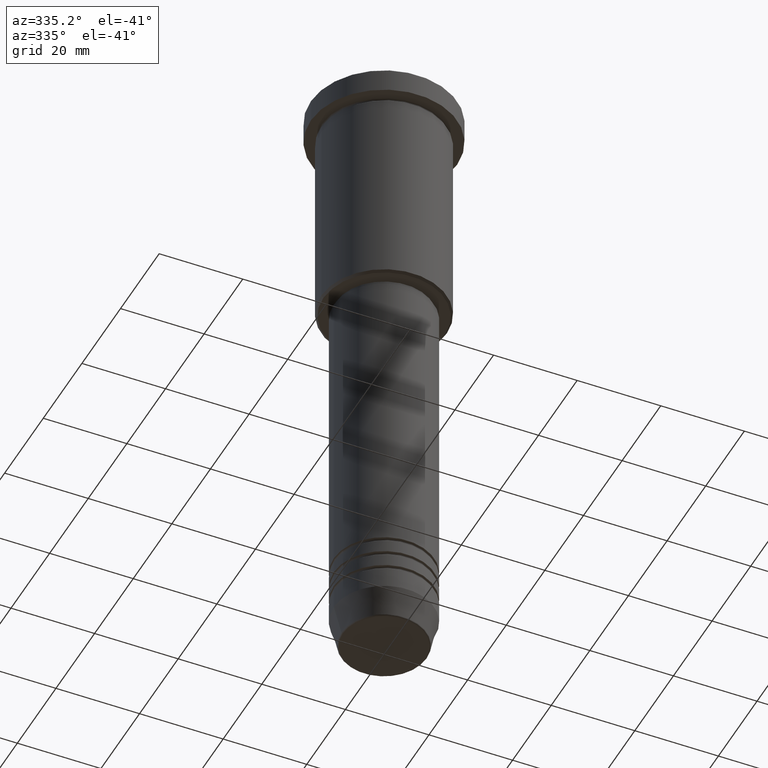
[diagram: clean part render]
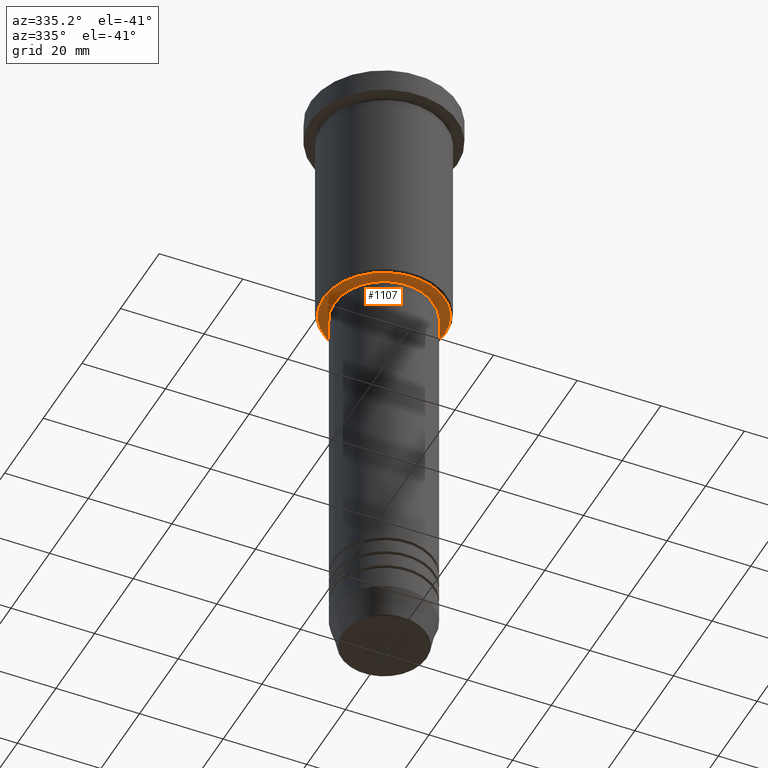
[diagram: same view with one face highlighted and labeled with its STEP entity id]
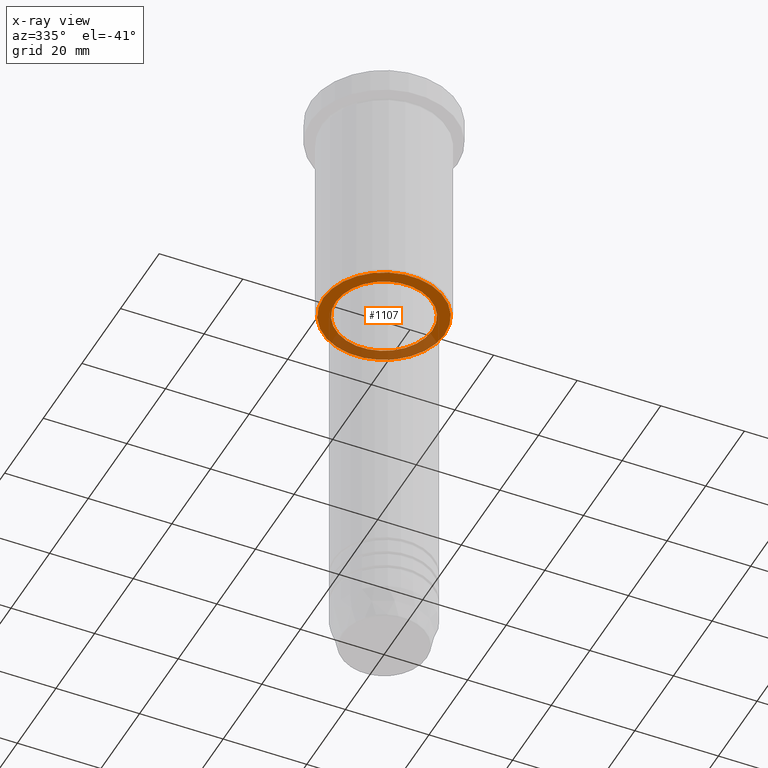
[diagram: x-ray of the same camera — body ghosted, the highlighted face saturated]
A machine part, auxiliary view. The second image highlights one B-rep face of the part: STEP entity #1107.
The next image is the same camera in x-ray: the body ghosted, the highlighted face saturated — about 31% of this face is hidden behind the body in this view.
In plain terms, the highlighted planar face has unit normal (0, 0, -1).
Its self-contained STEP definition (entity closure, byte-faithful):
#24 = DIRECTION ( 'NONE',  ( -1.000000000000000000, 0.000000000000000000, 0.000000000000000000 ) ) ;
#49 = CARTESIAN_POINT ( 'NONE',  ( -14.49999999999996980, 1.806354028742344224E-15, -56.00000000000000711 ) ) ;
#94 = ORIENTED_EDGE ( 'NONE', *, *, #657, .T. ) ;
#108 = FACE_OUTER_BOUND ( 'NONE', #417, .T. ) ;
#111 = ORIENTED_EDGE ( 'NONE', *, *, #725, .T. ) ;
#113 = CIRCLE ( 'NONE', #1080, 11.50000000000000000 ) ;
#117 = CARTESIAN_POINT ( 'NONE',  ( 0.000000000000000000, 0.000000000000000000, -56.00000000000000711 ) ) ;
#129 = VERTEX_POINT ( 'NONE', #49 ) ;
#140 = EDGE_LOOP ( 'NONE', ( #1108, #708 ) ) ;
#155 = CARTESIAN_POINT ( 'NONE',  ( 0.000000000000000000, 0.000000000000000000, -56.00000000000000711 ) ) ;
#209 = VERTEX_POINT ( 'NONE', #928 ) ;
#211 = DIRECTION ( 'NONE',  ( -1.000000000000000000, 0.000000000000000000, -0.000000000000000000 ) ) ;
#212 = EDGE_CURVE ( 'NONE', #209, #771, #1084, .T. ) ;
#285 = EDGE_CURVE ( 'NONE', #771, #209, #113, .T. ) ;
#298 = FACE_BOUND ( 'NONE', #140, .T. ) ;
#315 = DIRECTION ( 'NONE',  ( -0.000000000000000000, -0.000000000000000000, 1.000000000000000000 ) ) ;
#326 = CIRCLE ( 'NONE', #1000, 14.49999999999996980 ) ;
#339 = CARTESIAN_POINT ( 'NONE',  ( -11.50000000000000000, 1.408343819019456176E-15, -56.00000000000000711 ) ) ;
#417 = EDGE_LOOP ( 'NONE', ( #111, #94 ) ) ;
#531 = VERTEX_POINT ( 'NONE', #791 ) ;
#532 = DIRECTION ( 'NONE',  ( 1.000000000000000000, 0.000000000000000000, 0.000000000000000000 ) ) ;
#649 = AXIS2_PLACEMENT_3D ( 'NONE', #1032, #1025, #211 ) ;
#657 = EDGE_CURVE ( 'NONE', #129, #531, #747, .T. ) ;
#659 = AXIS2_PLACEMENT_3D ( 'NONE', #687, #315, #1124 ) ;
#664 = PLANE ( 'NONE',  #649 ) ;
#687 = CARTESIAN_POINT ( 'NONE',  ( 0.000000000000000000, 0.000000000000000000, -56.00000000000000711 ) ) ;
#708 = ORIENTED_EDGE ( 'NONE', *, *, #285, .T. ) ;
#725 = EDGE_CURVE ( 'NONE', #531, #129, #326, .T. ) ;
#747 = CIRCLE ( 'NONE', #1096, 14.49999999999996980 ) ;
#771 = VERTEX_POINT ( 'NONE', #339 ) ;
#791 = CARTESIAN_POINT ( 'NONE',  ( 14.49999999999996980, 0.000000000000000000, -56.00000000000000711 ) ) ;
#867 = DIRECTION ( 'NONE',  ( -0.000000000000000000, -0.000000000000000000, 1.000000000000000000 ) ) ;
#924 = DIRECTION ( 'NONE',  ( 0.000000000000000000, 0.000000000000000000, -1.000000000000000000 ) ) ;
#928 = CARTESIAN_POINT ( 'NONE',  ( 11.50000000000000000, 0.000000000000000000, -56.00000000000000711 ) ) ;
#1000 = AXIS2_PLACEMENT_3D ( 'NONE', #155, #1156, #1069 ) ;
#1025 = DIRECTION ( 'NONE',  ( 0.000000000000000000, 0.000000000000000000, -1.000000000000000000 ) ) ;
#1032 = CARTESIAN_POINT ( 'NONE',  ( 0.000000000000000000, 15.00000000000000000, -56.00000000000000711 ) ) ;
#1069 = DIRECTION ( 'NONE',  ( -1.000000000000000000, 0.000000000000000000, 0.000000000000000000 ) ) ;
#1080 = AXIS2_PLACEMENT_3D ( 'NONE', #1160, #867, #532 ) ;
#1084 = CIRCLE ( 'NONE', #659, 11.50000000000000000 ) ;
#1096 = AXIS2_PLACEMENT_3D ( 'NONE', #117, #924, #24 ) ;
#1107 = ADVANCED_FACE ( 'NONE', ( #108, #298 ), #664, .T. ) ;
#1108 = ORIENTED_EDGE ( 'NONE', *, *, #212, .T. ) ;
#1124 = DIRECTION ( 'NONE',  ( 1.000000000000000000, 0.000000000000000000, 0.000000000000000000 ) ) ;
#1156 = DIRECTION ( 'NONE',  ( 0.000000000000000000, 0.000000000000000000, -1.000000000000000000 ) ) ;
#1160 = CARTESIAN_POINT ( 'NONE',  ( 0.000000000000000000, 0.000000000000000000, -56.00000000000000711 ) ) ;